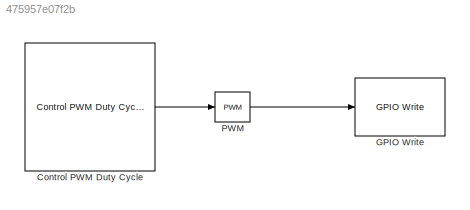
MODEL slx_475957e07f2b
KIND model
CONFIG AbsTol = auto
CONFIG EnableMultiTasking = off
CONFIG FixedStep = auto
CONFIG MaxStep = auto
CONFIG MinStep = auto
CONFIG RelTol = 1e-3
CONFIG SampleTimeConstraint = Unconstrained
CONFIG SolverName = FixedStepAuto
CONFIG StartTime = 0.0
CONFIG StopTime = inf
BLOCK [Reference] Control PWM Duty Cycle  REF=MainLibrary/PhaseSpace Functions/Control PWM Duty Cycle
  SourceBlock = MainLibrary/PhaseSpace Functions/Control PWM Duty Cycle
  SourceType = ControlPWM
BLOCK [Reference] GPIO Write  REF=nvidiaBasiclib/GPIO Write
  SourceBlock = nvidiaBasiclib/GPIO Write
  SourceType = nvidiacoder.common.NvidiaGPIOWrite
BLOCK [Reference] PWM  REF=simulink/Discontinuities/PWM
  DisableCoverage = on
  SourceBlock = simulink/Discontinuities/PWM
  SourceType = PWM
LINE Control PWM Duty Cycle:1 -> PWM:1
LINE PWM:1 -> GPIO Write:1
